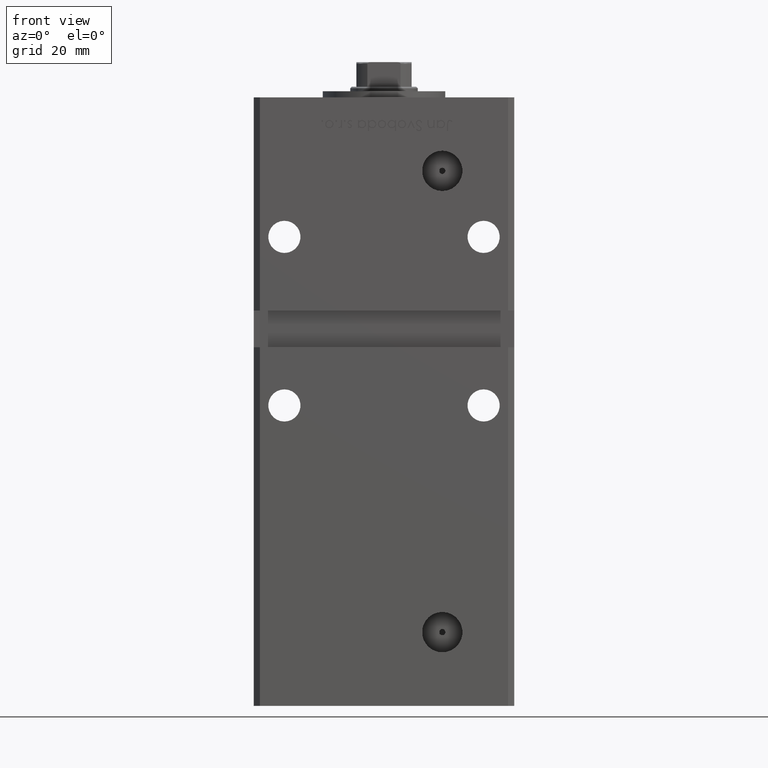
[diagram: clean part render]
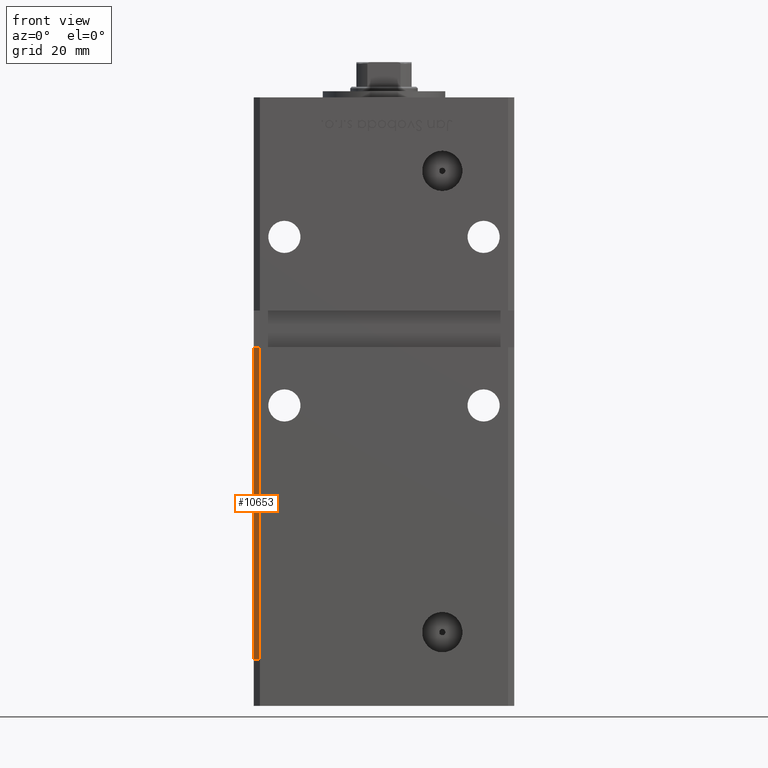
[diagram: same view with one face highlighted and labeled with its STEP entity id]
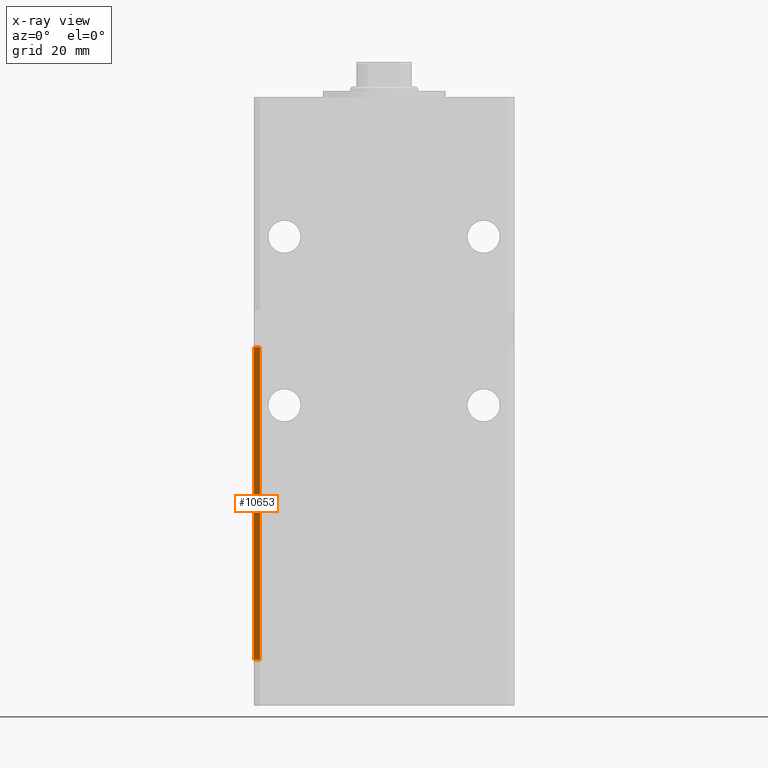
[diagram: x-ray of the same camera — body ghosted, the highlighted face saturated]
A machine part, front view. The second image highlights one B-rep face of the part: STEP entity #10653.
The next image is the same camera in x-ray: the body ghosted, the highlighted face saturated — about 0% of this face is hidden behind the body in this view.
In plain terms, the highlighted planar face has unit normal (0.7071, 0.7071, 0).
Its self-contained STEP definition (entity closure, byte-faithful):
#3237 = CARTESIAN_POINT ( 'NONE',  ( -40.49999999999998579, -37.50000000000000711, 168.5000000000000000 ) ) ;
#4608 = VECTOR ( 'NONE', #14537, 1000.000000000000114 ) ;
#5719 = EDGE_CURVE ( 'NONE', #23324, #49535, #25758, .T. ) ;
#6816 = DIRECTION ( 'NONE',  ( -0.000000000000000000, -0.000000000000000000, -1.000000000000000000 ) ) ;
#7341 = CARTESIAN_POINT ( 'NONE',  ( -42.49999999999998579, -35.50000000000000711, 168.5000000000000000 ) ) ;
#8854 = CARTESIAN_POINT ( 'NONE',  ( -40.49999999999998579, -37.50000000000000711, 0.000000000000000000 ) ) ;
#10264 = DIRECTION ( 'NONE',  ( -0.000000000000000000, -0.000000000000000000, -1.000000000000000000 ) ) ;
#10653 = ADVANCED_FACE ( 'NONE', ( #48261 ), #27541, .F. ) ;
#10787 = VECTOR ( 'NONE', #6816, 1000.000000000000000 ) ;
#10848 = EDGE_CURVE ( 'NONE', #40122, #41255, #30140, .T. ) ;
#11743 = CARTESIAN_POINT ( 'NONE',  ( -42.49999999999998579, -35.50000000000000711, 102.0000000000000142 ) ) ;
#14053 = AXIS2_PLACEMENT_3D ( 'NONE', #51531, #39912, #40169 ) ;
#14537 = DIRECTION ( 'NONE',  ( 0.7071067811865474617, -0.7071067811865474617, 0.000000000000000000 ) ) ;
#19385 = LINE ( 'NONE', #3237, #21939 ) ;
#20561 = ORIENTED_EDGE ( 'NONE', *, *, #10848, .T. ) ;
#20569 = EDGE_CURVE ( 'NONE', #49535, #40122, #52544, .T. ) ;
#21728 = EDGE_CURVE ( 'NONE', #23324, #41255, #19385, .T. ) ;
#21939 = VECTOR ( 'NONE', #10264, 1000.000000000000000 ) ;
#22048 = CARTESIAN_POINT ( 'NONE',  ( -42.49999999999998579, -35.50000000000000711, 0.000000000000000000 ) ) ;
#23324 = VERTEX_POINT ( 'NONE', #41832 ) ;
#25376 = EDGE_LOOP ( 'NONE', ( #39359, #29409, #35407, #20561 ) ) ;
#25758 = LINE ( 'NONE', #11743, #49877 ) ;
#27541 = PLANE ( 'NONE',  #14053 ) ;
#27603 = DIRECTION ( 'NONE',  ( -0.7071067811865474617, 0.7071067811865474617, 0.000000000000000000 ) ) ;
#29409 = ORIENTED_EDGE ( 'NONE', *, *, #5719, .T. ) ;
#30140 = LINE ( 'NONE', #51398, #4608 ) ;
#35407 = ORIENTED_EDGE ( 'NONE', *, *, #20569, .T. ) ;
#36201 = CARTESIAN_POINT ( 'NONE',  ( -42.49999999999998579, -35.49999999999996447, 102.0000000000000142 ) ) ;
#39359 = ORIENTED_EDGE ( 'NONE', *, *, #21728, .F. ) ;
#39912 = DIRECTION ( 'NONE',  ( 0.7071067811865475727, 0.7071067811865475727, -0.000000000000000000 ) ) ;
#40122 = VERTEX_POINT ( 'NONE', #22048 ) ;
#40169 = DIRECTION ( 'NONE',  ( -0.7071067811865474617, 0.7071067811865474617, 0.000000000000000000 ) ) ;
#41255 = VERTEX_POINT ( 'NONE', #8854 ) ;
#41832 = CARTESIAN_POINT ( 'NONE',  ( -40.49999999999998579, -37.50000000000000711, 102.0000000000000142 ) ) ;
#48261 = FACE_OUTER_BOUND ( 'NONE', #25376, .T. ) ;
#49535 = VERTEX_POINT ( 'NONE', #36201 ) ;
#49877 = VECTOR ( 'NONE', #27603, 1000.000000000000114 ) ;
#51398 = CARTESIAN_POINT ( 'NONE',  ( -42.49999999999998579, -35.50000000000000711, 0.000000000000000000 ) ) ;
#51531 = CARTESIAN_POINT ( 'NONE',  ( -42.49999999999998579, -35.50000000000000711, 168.5000000000000000 ) ) ;
#52544 = LINE ( 'NONE', #7341, #10787 ) ;